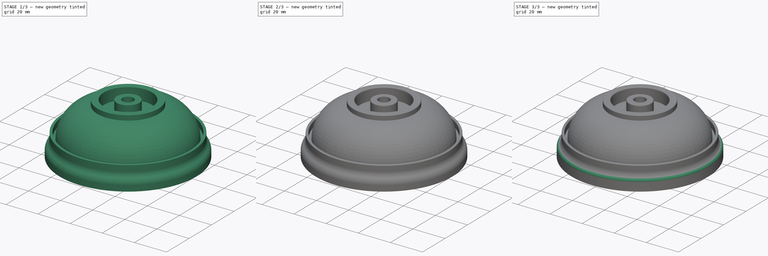
[diagram: build sequence overview — one tinted view per stage of 3, left to right]
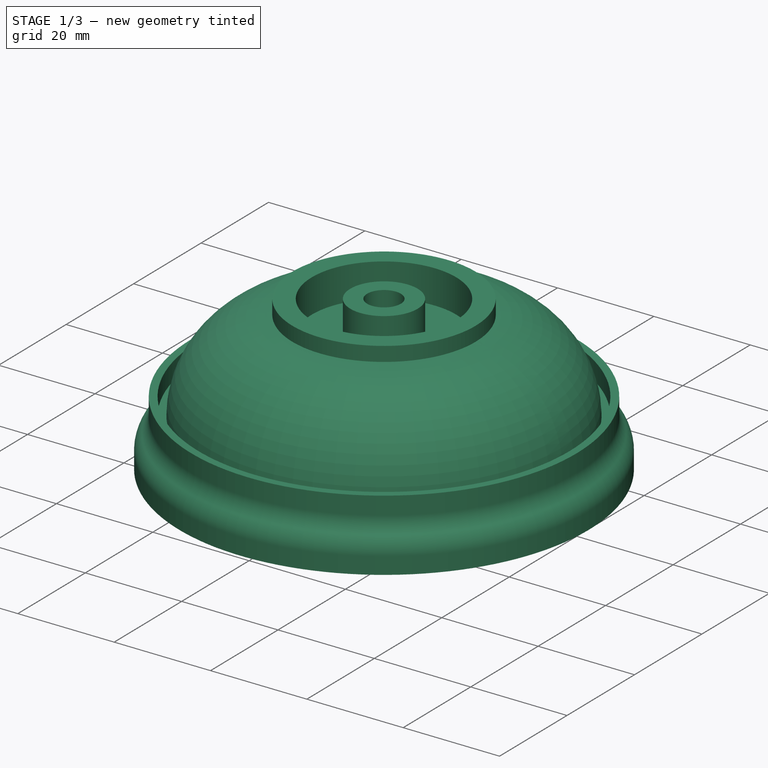
[diagram: stage 1 of 3 — iso view after this stage's code; geometry added in this stage tinted green]
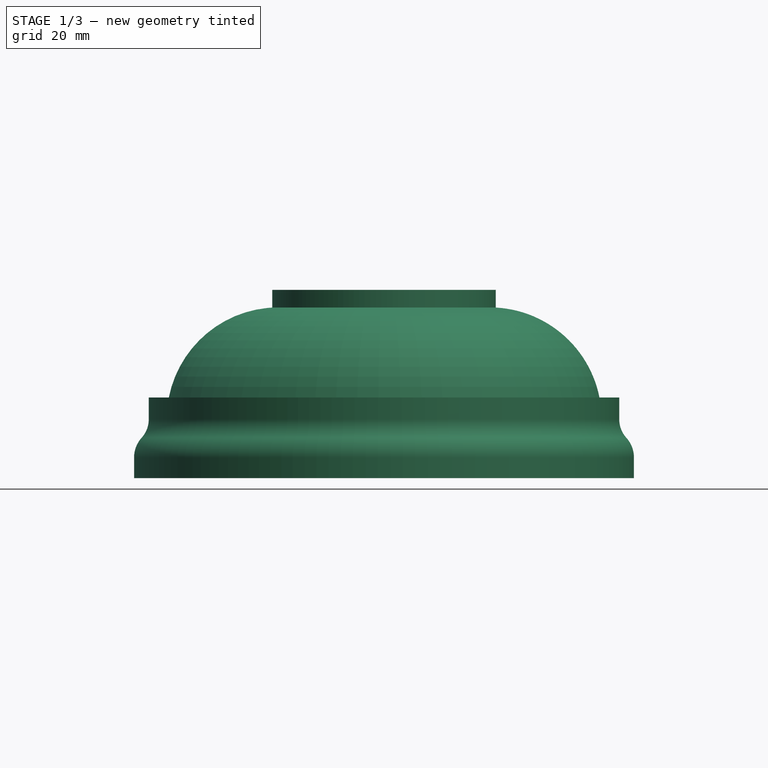
[diagram: stage 1 of 3 — front view after this stage's code; geometry added in this stage tinted green]
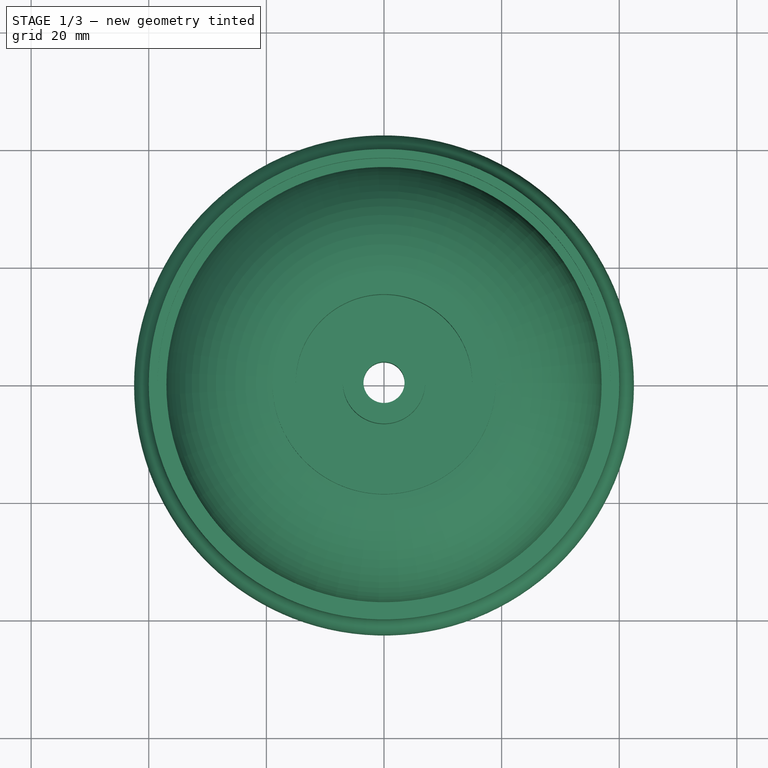
[diagram: stage 1 of 3 — top view after this stage's code; geometry added in this stage tinted green]
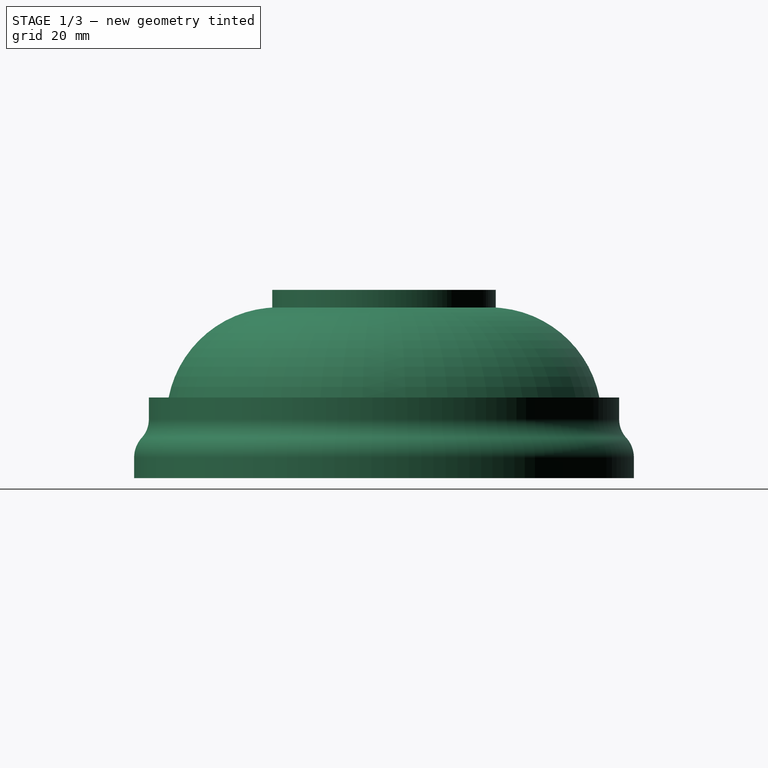
[diagram: stage 1 of 3 — right view after this stage's code; geometry added in this stage tinted green]
FCSTD DOCUMENT  (FreeCAD 2024.409R38991 (Git))
Label: Can-3D
License: All rights reserved
objects: Sketcher::SketchObject×6, PartDesign::Pocket×4, PartDesign::Fillet×2, PartDesign::Body×2, App::Part×2, PartDesign::Pad×1, Part::SubShapeBinder×1, PartDesign::Revolution×1
note: 39 computed .brp shape members not serialized (recipe doc carries the construction recipe); baked Part::Feature solids carry a one-line shape summary decoded from their .brp

FEATURE [PartDesign::Body] Body
  AutoGroupSolids = false
  ClaimAllChildren = false
  ExportMode = 0
  Group = -> [Sketch,Pad,Sketch001,Pocket,Fillet]
  InvalidShape = false
  Origin = -> Origin001
  Tip = -> Fillet
  TreeRank = 13
  ValidateShape = false
  _ExportChildren = -> [Pad,Pocket,Fillet]
  _GroupVersion = 1
FEATURE [App::Part] Part  label="Base"
  ClaimAllChildren = false
  ExportMode = 1
  Group = -> [Body]
  Origin = -> Origin
  TreeRank = 3
  _ExportChildren = -> [Body]
  _GroupVersion = 1
FEATURE [Part::SubShapeBinder] Import  label="Import(Fillet)"
  BindCopyOnChange = 0
  BindMode = 0
  ClaimChildren = false
  Context = -> Part001 [Body001.Import.]
  EdgeTolerance = 1e-06
  FillStyle = 0
  Fuse = false
  InvalidShape = false
  MakeFace = false
  MergeEdges = true
  OffsetFill = false
  OffsetIntersection = false
  OffsetJoinType = 0
  OffsetOpenResult = false
  Outline = false
  PartialLoad = false
  Relative = true
  SplitEdges = false
  Support = -> [Part[Body.Fillet.]]
  TightBound = false
  TreeRank = 33
  ValidateShape = false
  _Version = 8
FEATURE [Sketcher::SketchObject] Sketch002
  ArcFitTolerance = 1e-06
  AttachmentSupport = -> [XZ_Plane001]
  ExternalBSplineMaxDegree = 5
  ExternalBSplineTolerance = 0.0001
  ExternalGeometry = -> [Import]
  FullyConstrained = true
  InternalTolerance = 1e-06
  InvalidShape = false
  MakeInternals = false
  MapMode = 5
  Placement = pos=(0,0,0) rot=(1,0,0;1.5708rad)
  Support = -> [XZ_Plane001]
  TreeRank = 32
  ValidateShape = false
  sketch-geometry (20):
    g0: LineSegment StartX=0 StartY=32 StartZ=0 EndX=7 EndY=32 EndZ=0
    g1: LineSegment StartX=7 StartY=32 StartZ=0 EndX=7 EndY=25 EndZ=0
    g2: LineSegment StartX=7 StartY=25 StartZ=0 EndX=15 EndY=25 EndZ=0
    g3: LineSegment StartX=15 StartY=25 StartZ=0 EndX=15 EndY=32 EndZ=0
    g4: LineSegment StartX=15 StartY=32 StartZ=0 EndX=19 EndY=32 EndZ=0
    g5: LineSegment StartX=19 StartY=32 StartZ=0 EndX=19 EndY=29 EndZ=0
    g6: LineSegment StartX=0 StartY=0 StartZ=0 EndX=0 EndY=32 EndZ=0
    g7: LineSegment StartX=0 StartY=0 StartZ=0 EndX=37.45 EndY=0 EndZ=0
    g8: LineSegment StartX=37.45 StartY=0 StartZ=0 EndX=37.45 EndY=3.5 EndZ=0
    g9: LineSegment StartX=37.45 StartY=3.5 StartZ=0 EndX=40.25 EndY=3.5 EndZ=0
    g10: LineSegment StartX=40.25 StartY=3.5 StartZ=0 EndX=40.25 EndY=0 EndZ=0
    g11: LineSegment StartX=40.25 StartY=0 StartZ=0 EndX=42.5 EndY=0 EndZ=0
    g12: LineSegment StartX=42.5 StartY=0 StartZ=0 EndX=42.5 EndY=3.5 EndZ=0
    g13: ArcOfCircle CenterX=37.4756 CenterY=3.5 CenterZ=0 NormalX=0 NormalY=0 NormalZ=1 AngleXU=0 Radius=5.02436 StartAngle=0 EndAngle=0.734348
    g14: ArcOfCircle CenterX=44.6756 CenterY=10 CenterZ=0 NormalX=0 NormalY=0 NormalZ=1 AngleXU=0 Radius=4.67564 StartAngle=3.14159 EndAngle=3.87594
    g15: LineSegment StartX=40 StartY=10 StartZ=0 EndX=40 EndY=13.7 EndZ=0
    g16: LineSegment StartX=40 StartY=13.7 StartZ=0 EndX=38.5 EndY=13.7 EndZ=0
    g17: LineSegment StartX=38.5 StartY=13.7 StartZ=0 EndX=38.5 EndY=10 EndZ=0
    g18: LineSegment StartX=38.5 StartY=10 StartZ=0 EndX=37 EndY=10 EndZ=0
    g19: ArcOfCircle CenterX=17.9722 CenterY=10 CenterZ=0 NormalX=0 NormalY=0 NormalZ=1 AngleXU=0 Radius=19.0278 StartAngle=0 EndAngle=1.51676
  constraints (56):
    c: PointOnObject(g0,g-2)
    c: Horizontal(g0)
    c: Coincident(g0,g1)
    c: Vertical(g1)
    c: Coincident(g1,g2)
    c: Horizontal(g2)
    c: Coincident(g2,g3)
    c: Vertical(g3)
    c: Coincident(g3,g4)
    c: Horizontal(g4)
    c: Coincident(g4,g5)
    c: Vertical(g5)
    c: Coincident(g6,g0)
    c: Coincident(g6,g7)
    c: PointOnObject(g7,g-3)
    c: Coincident(g7,g8)
    c: Coincident(g8,g-5)
    c: Coincident(g8,g9)
    c: Coincident(g9,g-4)
    c: Coincident(g9,g10)
    c: PointOnObject(g10,g-3)
    c: Coincident(g10,g11)
    c: Coincident(g11,g-3)
    c: Coincident(g11,g12)
    c: Vertical(g12)
    c: Vertical(g8)
    c: Vertical(g10)
    c: Tangent(g14,g13) = 1.5708
    c: Vertical(g15)
    c: Coincident(g15,g16)
    c: Horizontal(g16)
    c: Coincident(g16,g17)
    c: Vertical(g17)
    c: Coincident(g17,g18)
    c: Horizontal(g18)
    c: Coincident(g19,g18)
    c: Coincident(g19,g5)
    c: Tangent(g13,g12) = -1.5708
    c: DistanceY(g11,g14) = 10
    c: Horizontal(g17,g14)
    c: DistanceY(g15,g15) = 3.7
    c: DistanceX(g0,g0) = 7
    c: Horizontal(g3,g0)
    c: DistanceX(g0,g3) = 15
    c: DistanceX(g4,g4) = 4
    c: DistanceY(g5,g5) = 3
    c: DistanceY(g1,g1) = 7
    c: Horizontal(g18,g19)
    c: DistanceX(g16,g16) = 1.5
    c: DistanceX(g18,g18) = 1.5
    c: Tangent(g15,g14) = 1.5708
    c: DistanceX(g14,g11) = 2.5
    c: DistanceY(g6,g6) = 32
    c: Horizontal(g12,g9)
    c: DistanceX(g13) = 41.2051
    c: Coincident(g6,g-1)
FEATURE [PartDesign::Revolution] Revolution
  AddSubType = 0
  Angle = 360
  Axis = (0,2e-16,1)
  Base = (0,0,0)
  ClaimChildren = false
  Fit = 0
  FitJoin = 0
  InnerFit = 0
  InnerFitJoin = 0
  InvalidShape = false
  Linearize = true
  NewSolid = false
  Profile = -> Sketch002
  ReferenceAxis = -> Sketch002 [V_Axis]
  Reversed = true
  Suppress = false
  TreeRank = 34
  ValidateShape = false
  _ProfileBasedVersion = 1
FEATURE [Sketcher::SketchObject] Sketch003
  ArcFitTolerance = 1e-06
  AttachmentSupport = -> [Revolution]
  ExternalBSplineMaxDegree = 5
  ExternalBSplineTolerance = 0.0001
  FullyConstrained = true
  InternalTolerance = 1e-06
  InvalidShape = false
  MakeInternals = false
  MapMode = 5
  Placement = pos=(0,7.1e-15,32) rot=(0,0,1;0rad)
  Support = -> [Revolution]
  TreeRank = 35
  ValidateShape = false
  sketch-geometry (1):
    g0: Circle CenterX=0 CenterY=0 CenterZ=0 NormalX=0 NormalY=0 NormalZ=1 AngleXU=0 Radius=3.5
  constraints (2):
    c: Coincident(g0,g-1)
    c: Diameter(g0) = 7
FEATURE [PartDesign::Pocket] Pocket001
  AddSubType = 1
  AlongSketchNormal = false
  AutoTaperInnerAngle = true
  BaseFeature = -> Revolution
  CheckUpToFaceLimits = true
  ClaimChildren = false
  Direction = (0,-2e-16,-1)
  Fit = 0
  FitJoin = 0
  InnerFit = 0
  InnerFitJoin = 0
  InvalidShape = false
  Length = 5
  Length2 = 10
  Linearize = true
  NewSolid = false
  Profile = -> Sketch003
  ReferenceAxis = -> Sketch003 [N_Axis]
  Suppress = false
  TaperInnerAngle = 0
  TaperInnerAngleRev = 0
  TreeRank = 36
  Type = 1
  ValidateShape = false
  _ProfileBasedVersion = 1
  _Version = 1
FEATURE [Sketcher::SketchObject] Sketch004
  ArcFitTolerance = 1e-06
  AttachmentSupport = -> [Pocket001]
  ExternalBSplineMaxDegree = 5
  ExternalBSplineTolerance = 0.0001
  FullyConstrained = true
  InternalTolerance = 1e-06
  InvalidShape = false
  MakeInternals = false
  MapMode = 5
  Placement = pos=(0,0,0) rot=(1,0,0;3.14159rad)
  Support = -> [Pocket001]
  TreeRank = 37
  ValidateShape = false
  sketch-geometry (4):
    g0: LineSegment StartX=-7.5 StartY=5.25 StartZ=0 EndX=7.5 EndY=5.25 EndZ=0
    g1: LineSegment StartX=7.5 StartY=5.25 StartZ=0 EndX=7.5 EndY=-5.25 EndZ=0
    g2: LineSegment StartX=7.5 StartY=-5.25 StartZ=0 EndX=-7.5 EndY=-5.25 EndZ=0
    g3: LineSegment StartX=-7.5 StartY=-5.25 StartZ=0 EndX=-7.5 EndY=5.25 EndZ=0
  constraints (11):
    c: Coincident(g0,g1)
    c: Coincident(g1,g2)
    c: Coincident(g2,g3)
    c: Coincident(g3,g0)
    c: Horizontal(g0)
    c: Horizontal(g2)
    c: Vertical(g1)
    c: Vertical(g3)
    c: Symmetric(g1,g0,g-1)
    c: DistanceY(g1,g1) = 10.5
    c: DistanceX(g0,g0) = 15
FEATURE [PartDesign::Pocket] Pocket002
  AddSubType = 1
  AlongSketchNormal = false
  AutoTaperInnerAngle = true
  BaseFeature = -> Pocket001
  CheckUpToFaceLimits = true
  ClaimChildren = false
  Direction = (0,2e-16,1)
  Fit = 0
  FitJoin = 0
  InnerFit = 0
  InnerFitJoin = 0
  InvalidShape = false
  Length = 23
  Length2 = 10
  Linearize = true
  NewSolid = false
  Profile = -> Sketch004
  ReferenceAxis = -> Sketch004 [N_Axis]
  Suppress = false
  TaperInnerAngle = 0
  TaperInnerAngleRev = 0
  TreeRank = 38
  Type = 0
  ValidateShape = false
  _ProfileBasedVersion = 1
  _Version = 1
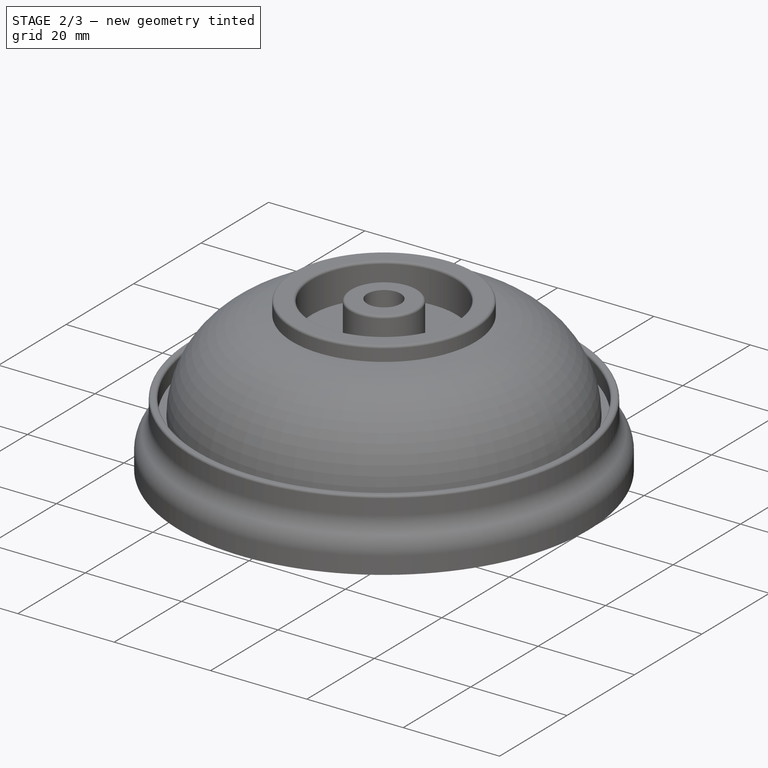
[diagram: stage 2 of 3 — iso view after this stage's code; geometry added in this stage tinted green]
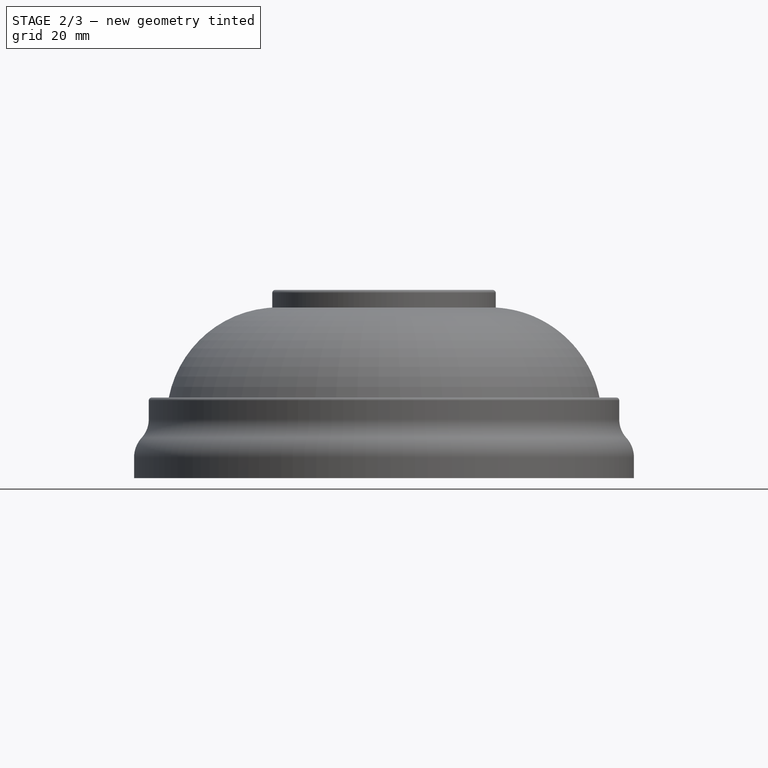
[diagram: stage 2 of 3 — front view after this stage's code; geometry added in this stage tinted green]
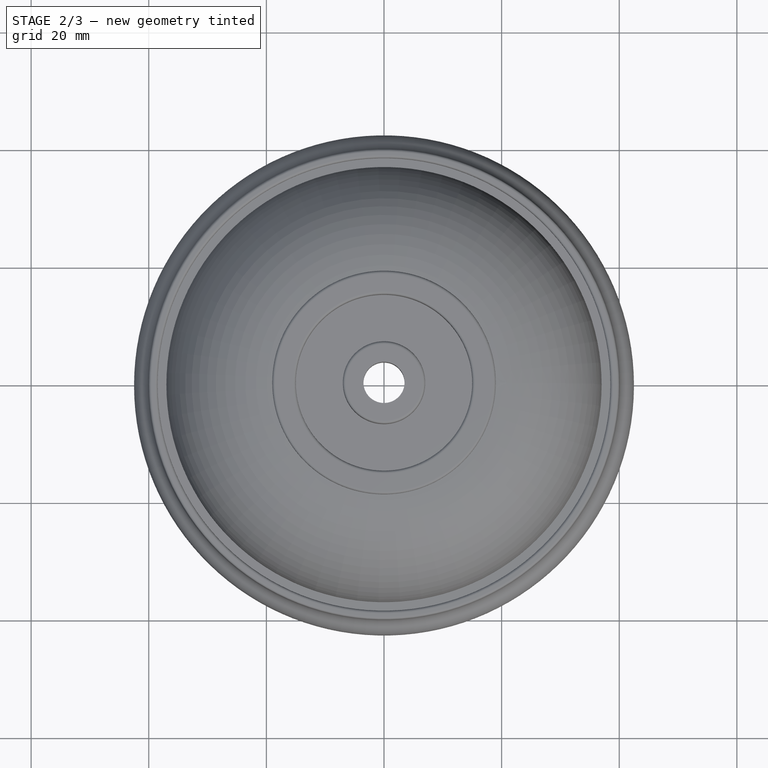
[diagram: stage 2 of 3 — top view after this stage's code; geometry added in this stage tinted green]
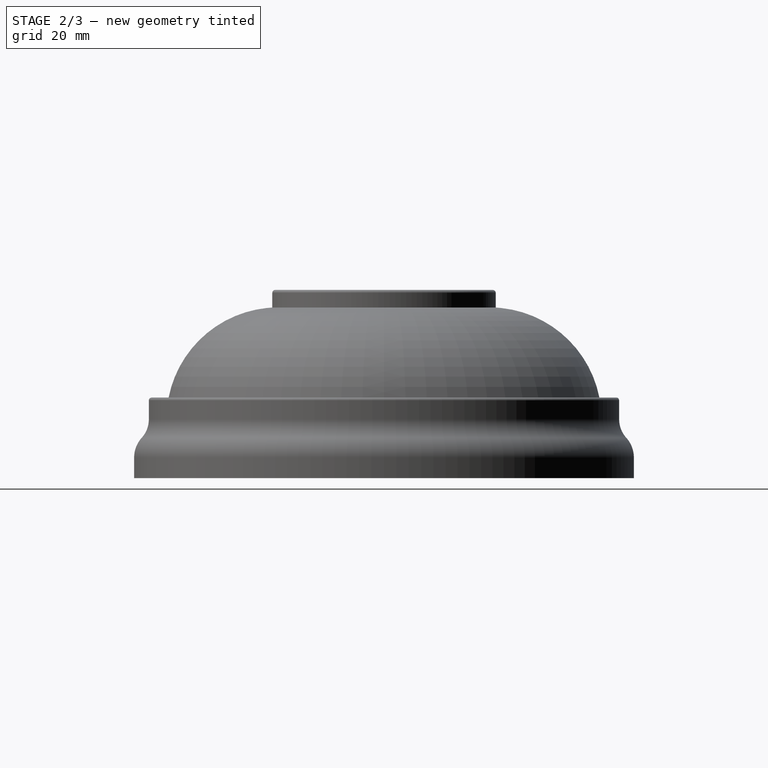
[diagram: stage 2 of 3 — right view after this stage's code; geometry added in this stage tinted green]
FEATURE [PartDesign::Fillet] Fillet001
  AddSubType = 0
  Base = -> Pocket002 [Edge1,Edge13,Edge22,Edge37,Edge34]
  BaseFeature = -> Pocket002
  InvalidShape = false
  NewSolid = false
  Radius = 0.5
  SupportTransform = false
  Suppress = false
  TreeRank = 39
  UseAllEdges = false
  ValidateShape = false
FEATURE [Sketcher::SketchObject] Sketch005
  ArcFitTolerance = 1e-06
  AttachmentSupport = -> [Fillet001]
  ExternalBSplineMaxDegree = 5
  ExternalBSplineTolerance = 0.0001
  FullyConstrained = true
  InternalTolerance = 1e-06
  InvalidShape = false
  MakeInternals = false
  MapMode = 5
  Placement = pos=(0,0,0) rot=(1,0,0;3.14159rad)
  Support = -> [Fillet001]
  TreeRank = 40
  ValidateShape = false
  sketch-geometry (9):
    g0: LineSegment StartX=-21.2132 StartY=-21.2132 StartZ=0 EndX=0 EndY=-30 EndZ=0
    g1: LineSegment StartX=-1.1e-15 StartY=-30 StartZ=0 EndX=21.2132 EndY=-21.2132 EndZ=0
    g2: LineSegment StartX=21.2132 StartY=-21.2132 StartZ=0 EndX=30 EndY=0 EndZ=0
    g3: LineSegment StartX=30 StartY=0 StartZ=0 EndX=21.2132 EndY=21.2132 EndZ=0
    g4: LineSegment StartX=21.2132 StartY=21.2132 StartZ=0 EndX=0 EndY=30 EndZ=0
    g5: LineSegment StartX=-6e-16 StartY=30 StartZ=0 EndX=-21.2132 EndY=21.2132 EndZ=0
    g6: LineSegment StartX=-21.2132 StartY=21.2132 StartZ=0 EndX=-30 EndY=0 EndZ=0
    g7: LineSegment StartX=-30 StartY=2e-16 StartZ=0 EndX=-21.2132 EndY=-21.2132 EndZ=0
    g8: Circle [constr] CenterX=0 CenterY=0 CenterZ=0 NormalX=0 NormalY=0 NormalZ=1 AngleXU=0 Radius=30
  constraints (20):
    c: Coincident(g0,g1)
    c: Coincident(g1,g2)
    c: Coincident(g2,g3)
    c: Coincident(g3,g4)
    c: Coincident(g4,g5)
    c: Coincident(g5,g6)
    c: Coincident(g6,g7)
    c: Coincident(g7,g0)
    c: Equal(g0, g1-g7) x7
    c: PointOnObject(g0,g8)
    c: PointOnObject(g1,g8)
    c: PointOnObject(g2,g8)
    c: PointOnObject(g3,g8)
    c: PointOnObject(g4,g8)
    c: PointOnObject(g5,g8)
    c: PointOnObject(g6,g8)
    c: PointOnObject(g7,g8)
    c: Coincident(g8,g-1)
    c: PointOnObject(g2,g-1)
    c: DistanceX(g8,g2) = 30
FEATURE [PartDesign::Pocket] Pocket003
  AddSubType = 1
  AlongSketchNormal = false
  AutoTaperInnerAngle = true
  BaseFeature = -> Fillet001
  CheckUpToFaceLimits = true
  ClaimChildren = false
  Direction = (0,2e-16,1)
  Fit = 0
  FitJoin = 0
  InnerFit = 0
  InnerFitJoin = 0
  InvalidShape = false
  Length = 20
  Length2 = 10
  Linearize = true
  NewSolid = false
  Profile = -> Sketch005
  ReferenceAxis = -> Sketch005 [N_Axis]
  Suppress = false
  TaperInnerAngle = 0
  TaperInnerAngleRev = 0
  TreeRank = 41
  Type = 0
  ValidateShape = false
  _ProfileBasedVersion = 1
  _Version = 1
FEATURE [PartDesign::Body] Body001
  AutoGroupSolids = false
  ClaimAllChildren = false
  ExportMode = 0
  Group = -> [Sketch002,Import,Revolution,Sketch003,Pocket001,Sketch004,Pocket002,Fillet001,Sketch005,Pocket003]
  InvalidShape = false
  Origin = -> Origin003
  Tip = -> Pocket003
  TreeRank = 31
  ValidateShape = false
  _ExportChildren = -> [Import,Revolution,Pocket001,Pocket002,Fillet001,Pocket003]
  _GroupVersion = 1
FEATURE [App::Part] Part001  label="Top"
  ClaimAllChildren = false
  ExportMode = 1
  Group = -> [Body001]
  Origin = -> Origin002
  TreeRank = 21
  _ExportChildren = -> [Body001]
  _GroupVersion = 1
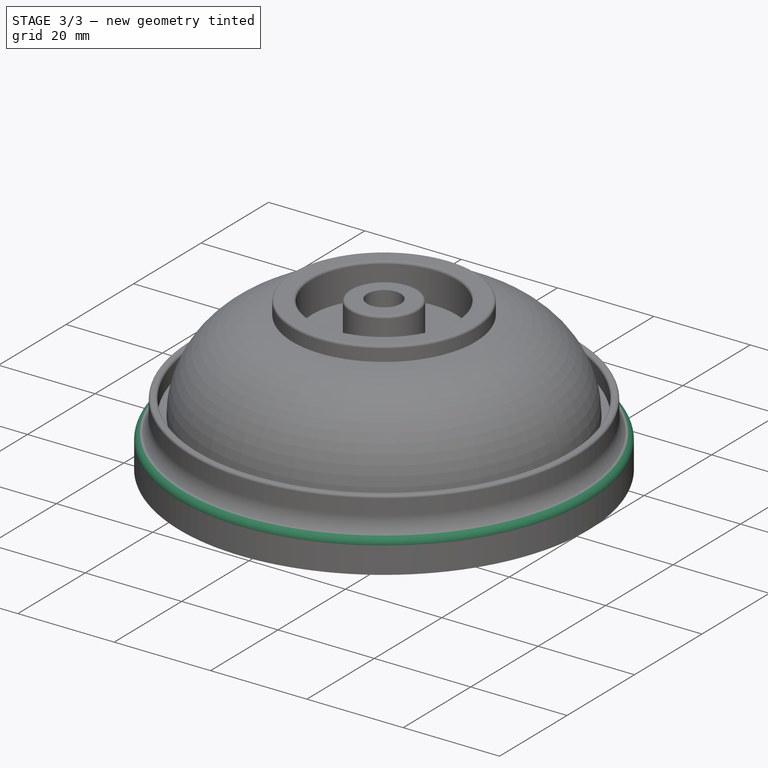
[diagram: stage 3 of 3 — iso view after this stage's code; geometry added in this stage tinted green]
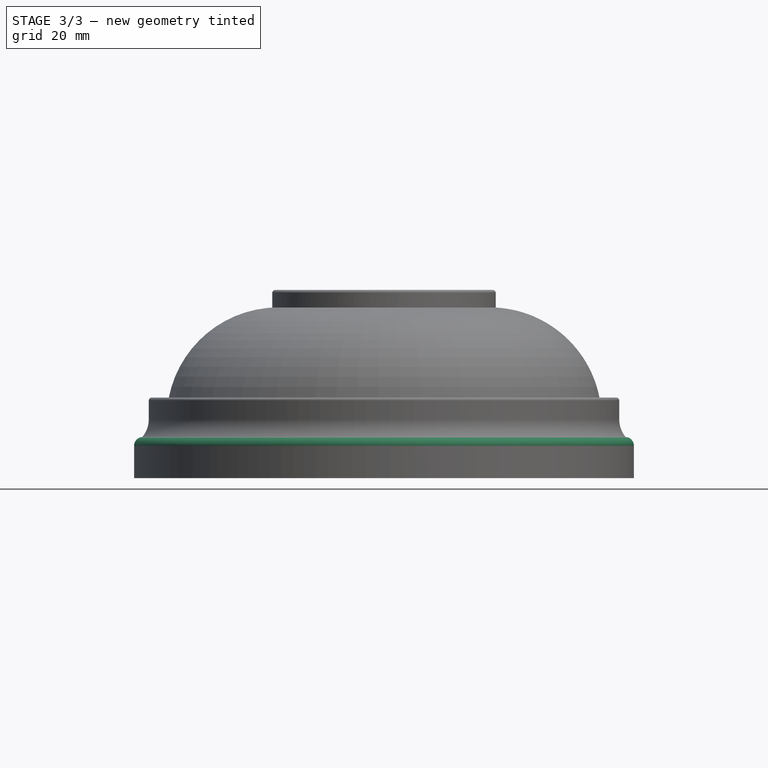
[diagram: stage 3 of 3 — front view after this stage's code; geometry added in this stage tinted green]
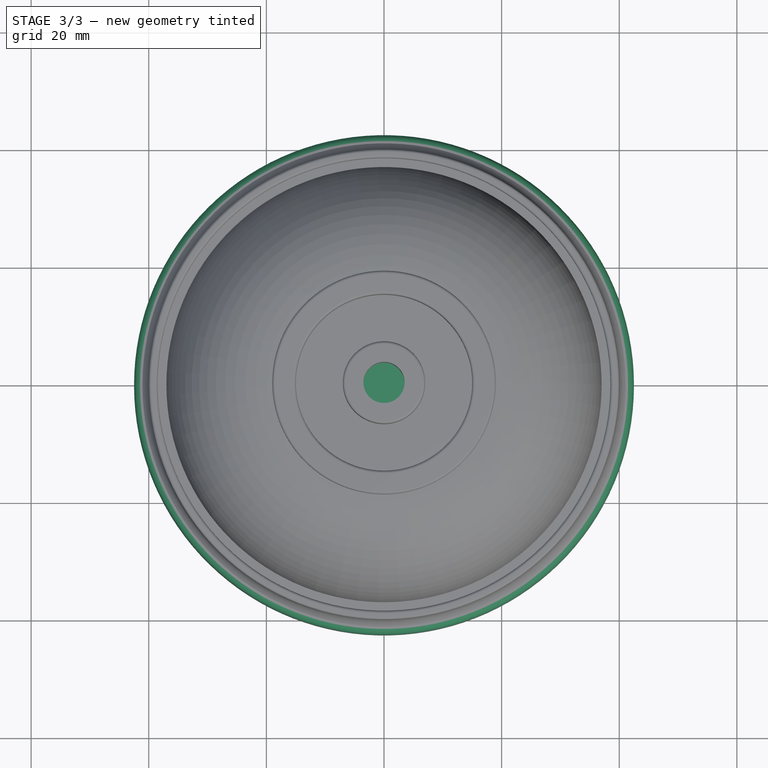
[diagram: stage 3 of 3 — top view after this stage's code; geometry added in this stage tinted green]
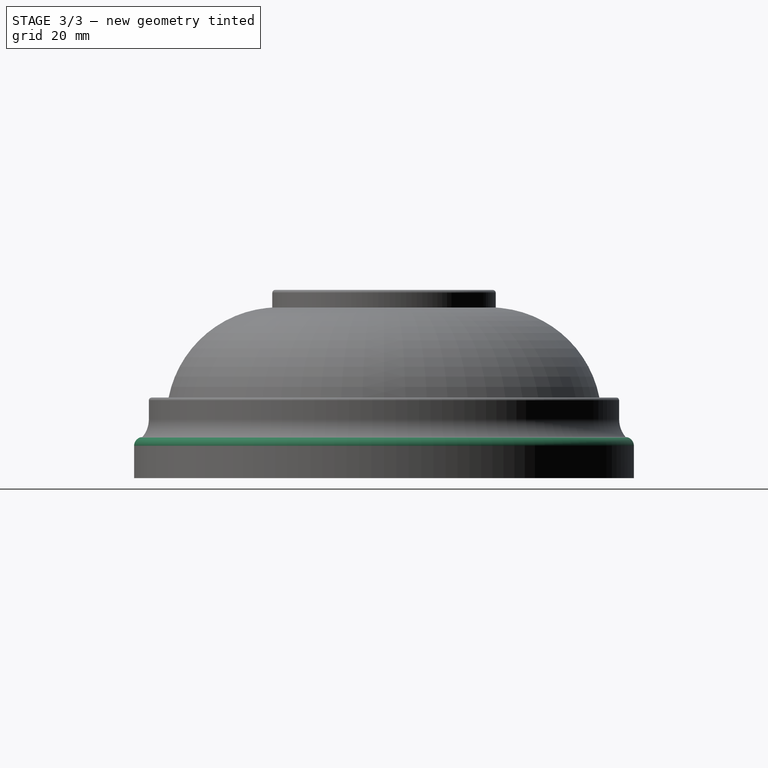
[diagram: stage 3 of 3 — right view after this stage's code; geometry added in this stage tinted green]
FEATURE [Sketcher::SketchObject] Sketch
  ArcFitTolerance = 1e-06
  AttachmentSupport = -> [XY_Plane]
  ExternalBSplineMaxDegree = 5
  ExternalBSplineTolerance = 0.0001
  FullyConstrained = true
  InternalTolerance = 1e-06
  InvalidShape = false
  MakeInternals = false
  MapMode = 5
  Support = -> [XY_Plane]
  TreeRank = 14
  ValidateShape = false
  sketch-geometry (1):
    g0: Circle CenterX=0 CenterY=0 CenterZ=0 NormalX=0 NormalY=0 NormalZ=1 AngleXU=0 Radius=42.5
  constraints (2):
    c: Coincident(g0,g-1)
    c: Diameter(g0) = 85
FEATURE [PartDesign::Pad] Pad
  AddSubType = 0
  AlongSketchNormal = false
  AutoTaperInnerAngle = true
  CheckUpToFaceLimits = true
  ClaimChildren = false
  Direction = (0,0,1)
  Fit = 0
  FitJoin = 0
  InnerFit = 0
  InnerFitJoin = 0
  InvalidShape = false
  Length = 7
  Length2 = 10
  Linearize = true
  NewSolid = false
  Profile = -> Sketch
  ReferenceAxis = -> Sketch [N_Axis]
  Suppress = false
  TaperInnerAngle = 0
  TaperInnerAngleRev = 0
  TreeRank = 15
  Type = 0
  ValidateShape = false
  _ProfileBasedVersion = 1
FEATURE [Sketcher::SketchObject] Sketch001
  ArcFitTolerance = 1e-06
  AttachmentSupport = -> [Pad]
  ExternalBSplineMaxDegree = 5
  ExternalBSplineTolerance = 0.0001
  FullyConstrained = true
  InternalTolerance = 1e-06
  InvalidShape = false
  MakeInternals = false
  MapMode = 5
  Placement = pos=(0,0,7) rot=(0,0,1;0rad)
  Support = -> [Pad]
  TreeRank = 16
  ValidateShape = false
  sketch-geometry (4):
    g0: Circle CenterX=0 CenterY=0 CenterZ=0 NormalX=0 NormalY=0 NormalZ=1 AngleXU=0 Radius=40.25
    g1: Circle CenterX=0 CenterY=0 CenterZ=0 NormalX=0 NormalY=0 NormalZ=1 AngleXU=0 Radius=37.45
    g2: GeomPoint [constr] X=37.45 Y=0 Z=0
    g3: GeomPoint [constr] X=40.25 Y=0 Z=0
  constraints (8):
    c: Coincident(g0,g-1)
    c: Coincident(g1,g0)
    c: PointOnObject(g2,g1)
    c: PointOnObject(g3,g0)
    c: PointOnObject(g3,g-1)
    c: PointOnObject(g2,g-1)
    c: DistanceX(g2,g3) = 2.8
    c: DistanceX(g0,g3) = 40.25
FEATURE [PartDesign::Pocket] Pocket
  AddSubType = 1
  AlongSketchNormal = false
  AutoTaperInnerAngle = true
  BaseFeature = -> Pad
  CheckUpToFaceLimits = true
  ClaimChildren = false
  Direction = (0,0,-1)
  Fit = 0
  FitJoin = 0
  InnerFit = 0
  InnerFitJoin = 0
  InvalidShape = false
  Length = 3.5
  Length2 = 10
  Linearize = true
  NewSolid = false
  Profile = -> Sketch001
  ReferenceAxis = -> Sketch001 [N_Axis]
  Suppress = false
  TaperInnerAngle = 0
  TaperInnerAngleRev = 0
  TreeRank = 17
  Type = 0
  ValidateShape = false
  _ProfileBasedVersion = 1
  _Version = 1
FEATURE [PartDesign::Fillet] Fillet
  AddSubType = 0
  Base = -> Pocket [Edge3]
  BaseFeature = -> Pocket
  InvalidShape = false
  NewSolid = false
  Radius = 1.5
  SupportTransform = false
  Suppress = false
  TreeRank = 18
  UseAllEdges = false
  ValidateShape = false
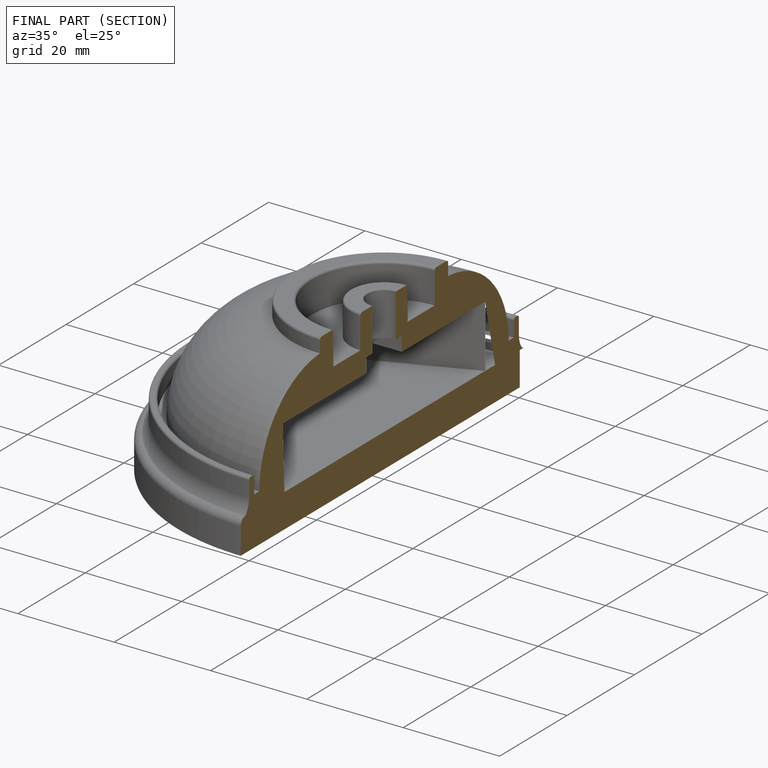
[diagram: finished part — half-section view (interior)]
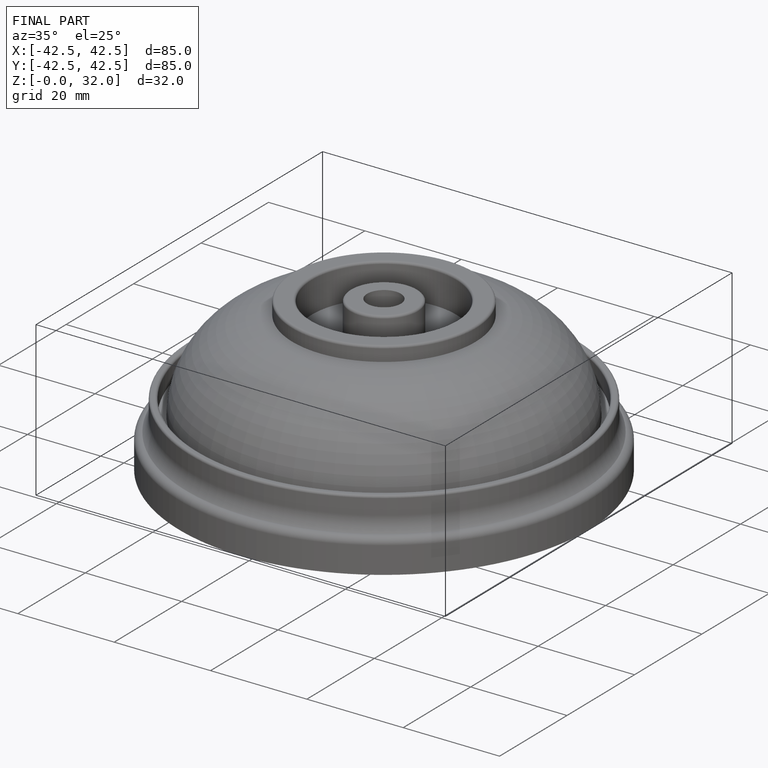
[diagram: finished part — iso view with bounding-box wireframe]
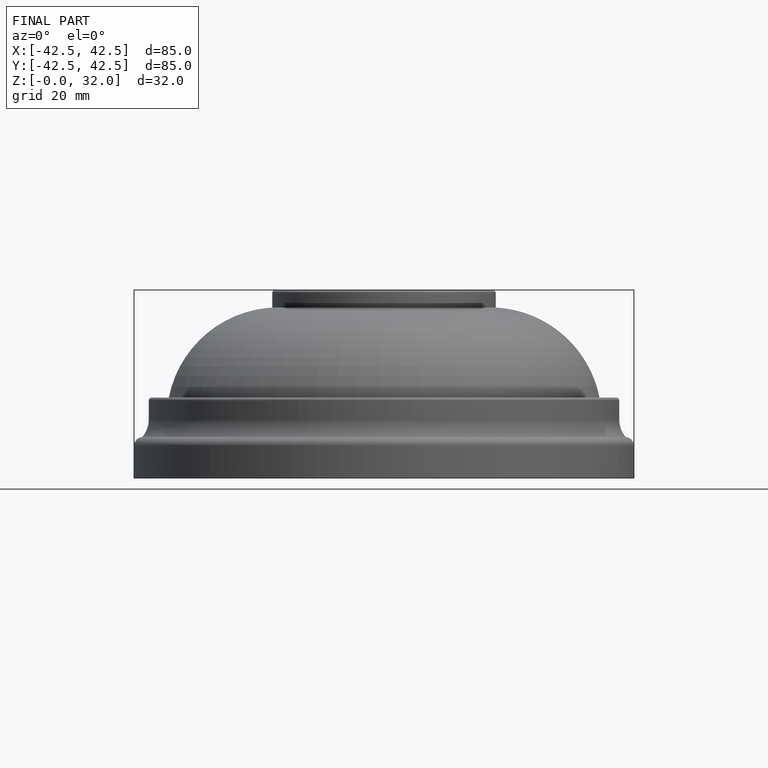
[diagram: finished part — front view with bounding-box wireframe]
